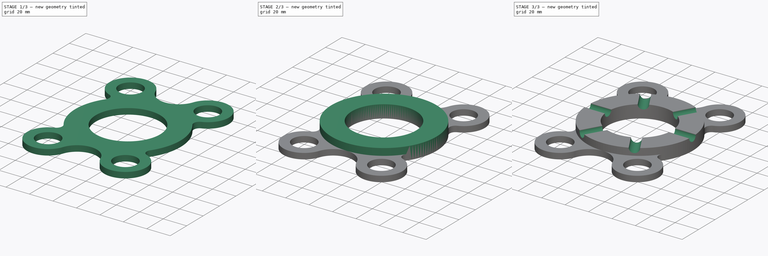
[diagram: build sequence overview — one tinted view per stage of 3, left to right]
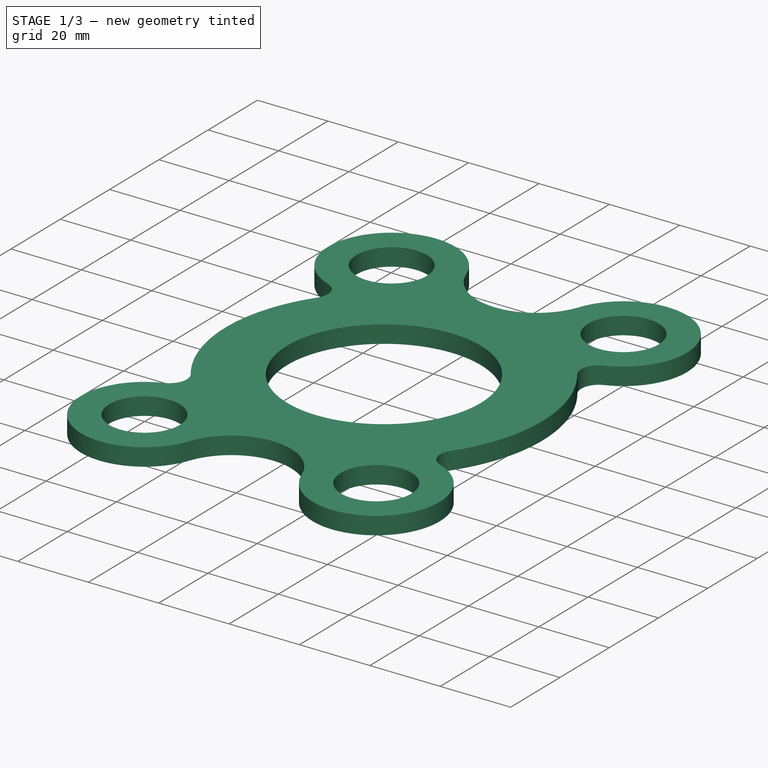
[diagram: stage 1 of 3 — iso view after this stage's code; geometry added in this stage tinted green]
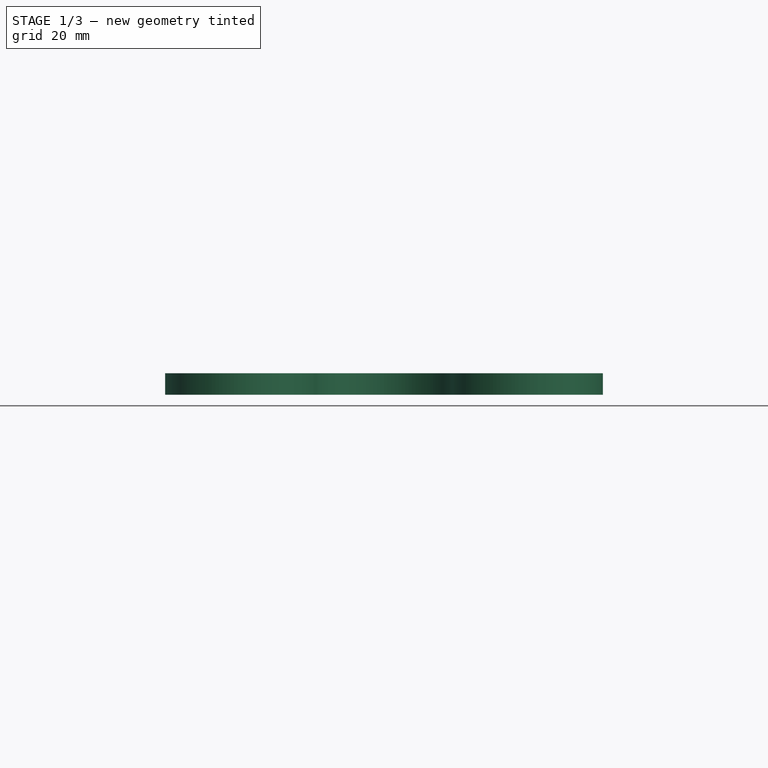
[diagram: stage 1 of 3 — front view after this stage's code; geometry added in this stage tinted green]
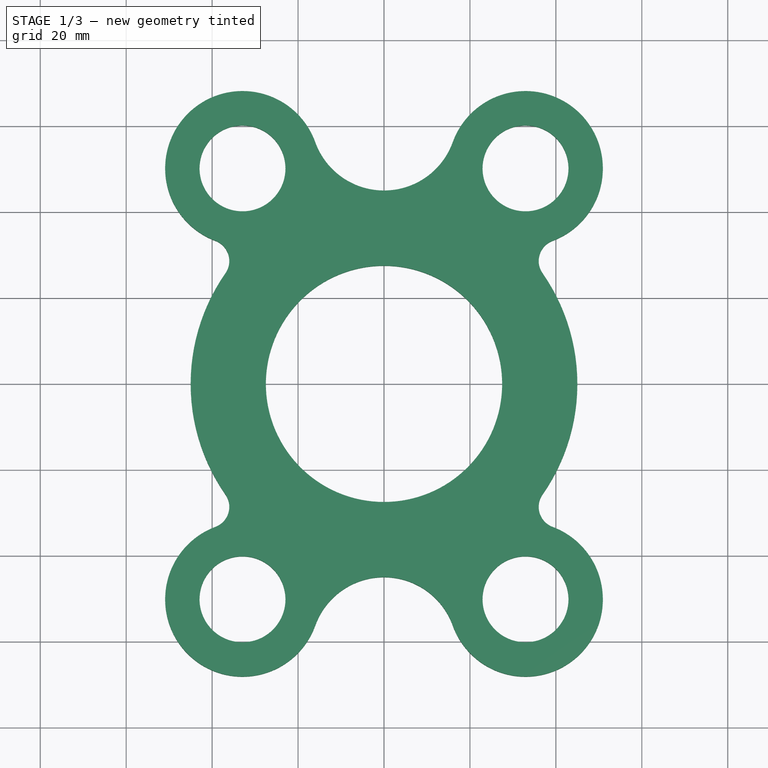
[diagram: stage 1 of 3 — top view after this stage's code; geometry added in this stage tinted green]
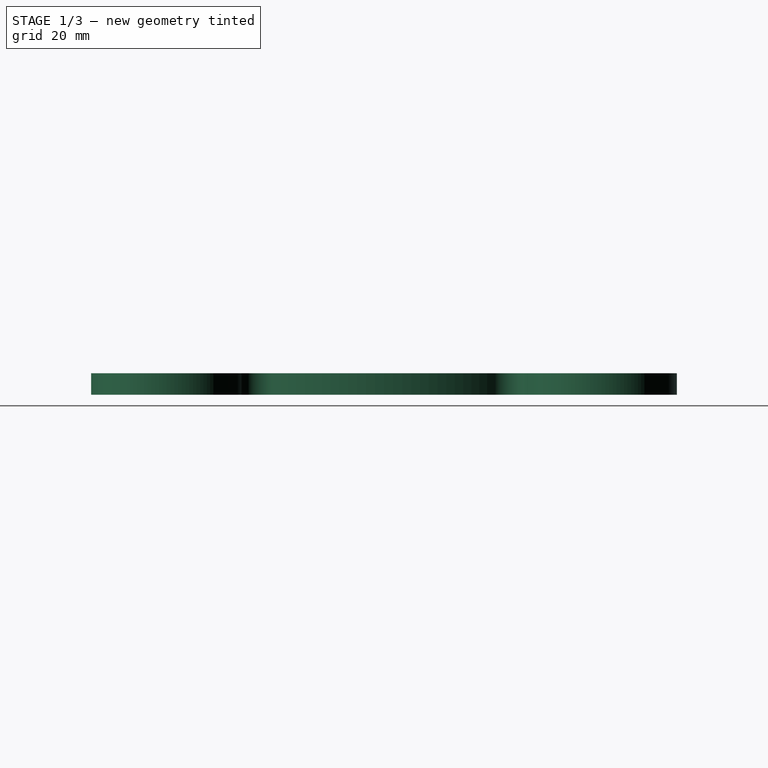
[diagram: stage 1 of 3 — right view after this stage's code; geometry added in this stage tinted green]
FCSTD DOCUMENT  (FreeCAD 0.18R14796 (Git))
Label: Page_09_Exercise 2D -01
License: All rights reserved
LicenseURL: http://en.wikipedia.org/wiki/All_rights_reserved
objects: Sketcher::SketchObject×2, PartDesign::Pad×2, PartDesign::Mirrored×2, PartDesign::MultiTransform×1, PartDesign::SubtractiveCylinder×1, PartDesign::PolarPattern×1, PartDesign::Body×1
note: 13 computed .brp shape members not serialized (recipe doc carries the construction recipe); baked Part::Feature solids carry a one-line shape summary decoded from their .brp

FEATURE [Sketcher::SketchObject] Sketch
  MapMode = 5
  Support = -> [XY_Plane]
  sketch-geometry (10):
    g0: ArcOfCircle CenterX=0 CenterY=62 CenterZ=0 NormalX=0 NormalY=0 NormalZ=1 AngleXU=0 Radius=17 StartAngle=3.48689 EndAngle=4.71239
    g1: ArcOfCircle CenterX=-32.9341 CenterY=50.1532 CenterZ=0 NormalX=0 NormalY=0 NormalZ=1 AngleXU=0 Radius=18 StartAngle=0.3453 EndAngle=4.35397
    g2: LineSegment StartX=0 StartY=45 StartZ=0 EndX=0 EndY=27.5 EndZ=0
    g3: ArcOfCircle CenterX=-41.0023 CenterY=28.6148 CenterZ=0 NormalX=0 NormalY=0 NormalZ=1 AngleXU=0 Radius=5 StartAngle=5.67388 EndAngle=7.49556
    g4: ArcOfCircle CenterX=0 CenterY=0 CenterZ=0 NormalX=0 NormalY=0 NormalZ=1 AngleXU=0 Radius=45 StartAngle=2.53229 EndAngle=3.14159
    g5: LineSegment StartX=-45 StartY=0 StartZ=0 EndX=-27.5 EndY=0 EndZ=0
    g6: ArcOfCircle CenterX=0 CenterY=0 CenterZ=0 NormalX=0 NormalY=0 NormalZ=1 AngleXU=0 Radius=27.5 StartAngle=1.5708 EndAngle=3.14159
    g7: ArcOfCircle [constr] CenterX=0 CenterY=0 CenterZ=0 NormalX=0 NormalY=0 NormalZ=1 AngleXU=0 Radius=45 StartAngle=1.5708 EndAngle=2.53229
    g8: LineSegment [constr] StartX=-32.9341 StartY=50.1532 StartZ=0 EndX=0 EndY=0 EndZ=0
    g9: Circle CenterX=-32.9341 CenterY=50.1532 CenterZ=0 NormalX=0 NormalY=0 NormalZ=1 AngleXU=0 Radius=10
  constraints (27):
    c: PointOnObject(g0,g-2)
    c: PointOnObject(g0,g-2)
    c: Radius(g0) = 17
    c: Vertical(g2)
    c: Tangent(g1,g0) = 1.5708
    c: Radius(g3) = 5
    c: Tangent(g3,g1) = 1.5708
    c: Radius(g1) = 18
    c: Radius(g4) = 45  'r_outer'
    c: Tangent(g4,g3) = 1.5708
    c: Coincident(g4,g-1)
    c: PointOnObject(g4,g-1)
    c: Coincident(g5,g4)
    c: Horizontal(g5)
    c: Coincident(g2,g0)
    c: Coincident(g6,g2)
    c: Radius(g6) = 27.5  'r_inner'
    c: Coincident(g6,g5)
    c: Coincident(g6,g4)
    c: Coincident(g7,g4)
    c: Coincident(g7,g0)
    c: Coincident(g7,g3)
    c: Coincident(g8,g1)
    c: Coincident(g8,g4)
    c: Distance(g8) = 60
    c: Coincident(g9,g1)
    c: Radius(g9) = 10
FEATURE [PartDesign::Pad] Pad
  Length = 5
  Length2 = 100
  Profile = -> Sketch
  Refine = true
  Type = 0
FEATURE [PartDesign::Mirrored] Mirrored
  MirrorPlane = -> Sketch [V_Axis]
  Refine = true
FEATURE [PartDesign::Mirrored] Mirrored001
  MirrorPlane = -> Sketch [H_Axis]
  Refine = true
FEATURE [PartDesign::MultiTransform] MultiTransform
  BaseFeature = -> Pad
  Originals = -> [Pad]
  Refine = true
  Transformations = -> [Mirrored,Mirrored001]
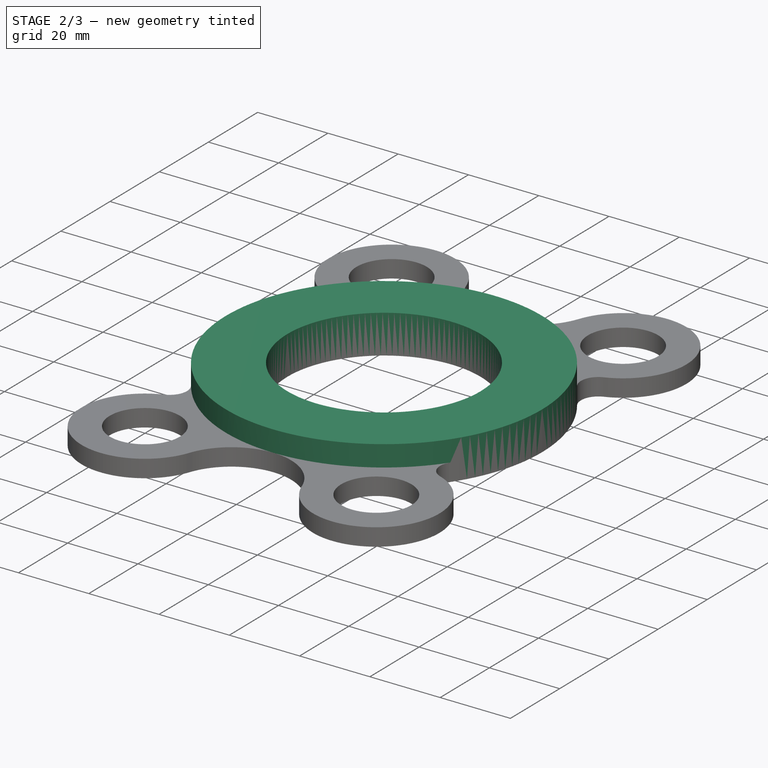
[diagram: stage 2 of 3 — iso view after this stage's code; geometry added in this stage tinted green]
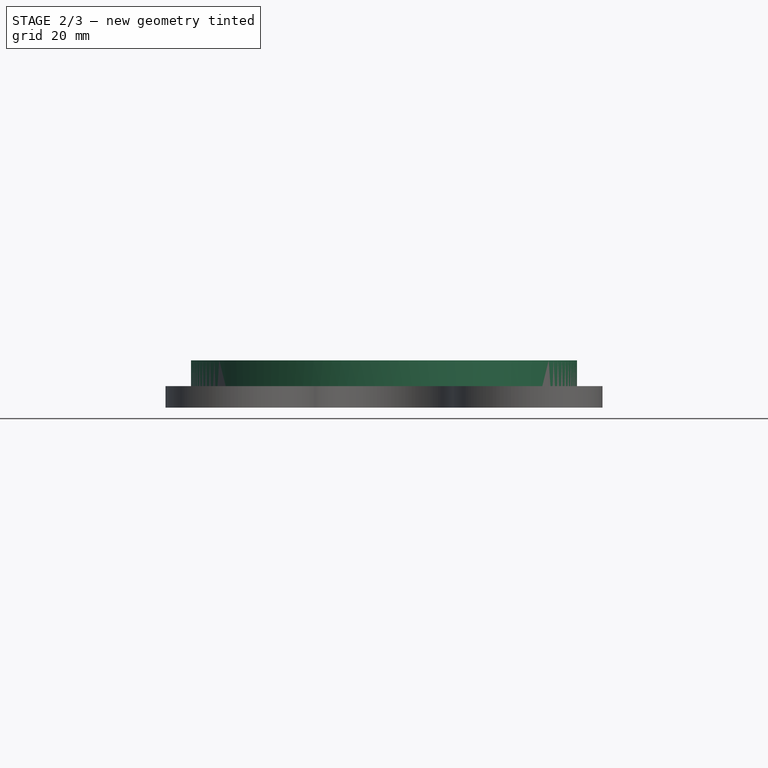
[diagram: stage 2 of 3 — front view after this stage's code; geometry added in this stage tinted green]
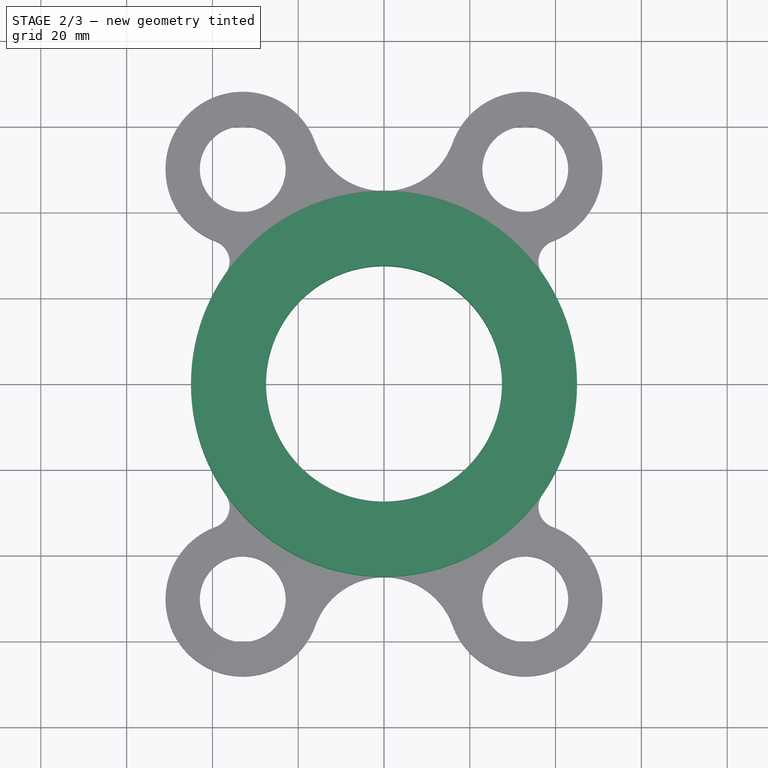
[diagram: stage 2 of 3 — top view after this stage's code; geometry added in this stage tinted green]
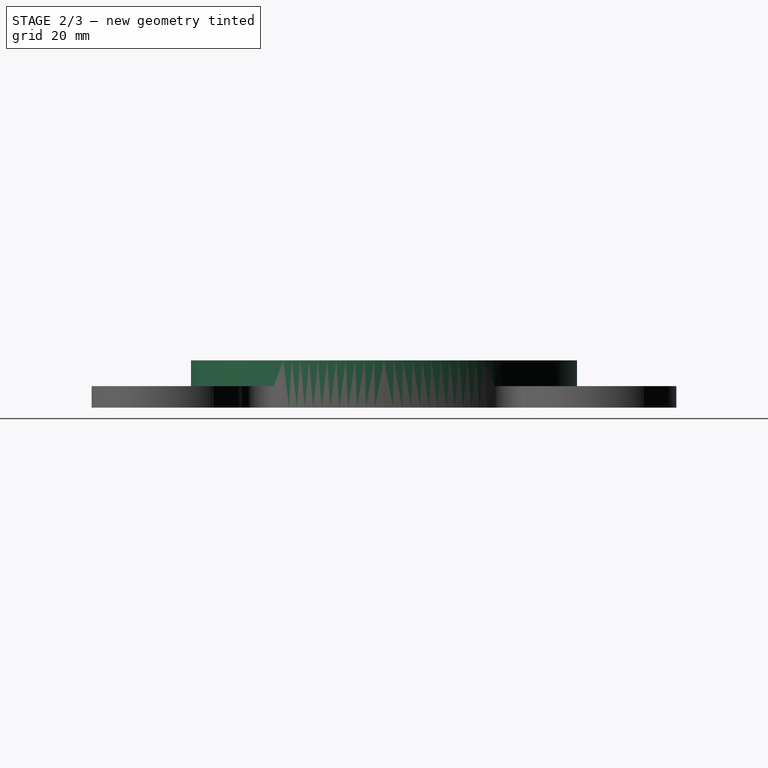
[diagram: stage 2 of 3 — right view after this stage's code; geometry added in this stage tinted green]
FEATURE [Sketcher::SketchObject] Sketch001
  AttachmentOffset = pos=(0,0,5) rot=(0,0,1;0rad)
  MapMode = 5
  Placement = pos=(0,0,5) rot=(0,0,1;0rad)
  Support = -> [XY_Plane]
  expr: AttachmentOffset.Base.z = Pad.Length
  expr: Constraints[3] = Sketch.Constraints.r_inner
  expr: Constraints[2] = Sketch.Constraints.r_outer
  sketch-geometry (2):
    g0: Circle CenterX=0 CenterY=0 CenterZ=0 NormalX=0 NormalY=0 NormalZ=1 AngleXU=0 Radius=27.5
    g1: Circle CenterX=0 CenterY=0 CenterZ=0 NormalX=0 NormalY=0 NormalZ=1 AngleXU=0 Radius=45
  constraints (4):
    c: Coincident(g0,g-1)
    c: Coincident(g1,g0)
    c: Radius(g1) = 45
    c: Radius(g0) = 27.5
FEATURE [PartDesign::Pad] Pad001
  BaseFeature = -> MultiTransform
  Length = 6
  Length2 = 100
  Profile = -> Sketch001
  Refine = true
  Type = 0
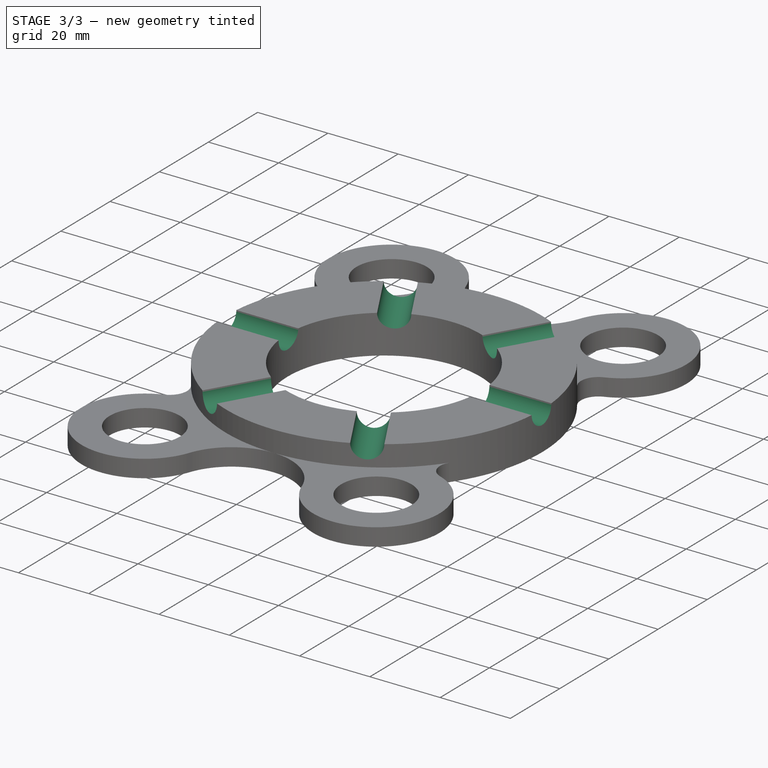
[diagram: stage 3 of 3 — iso view after this stage's code; geometry added in this stage tinted green]
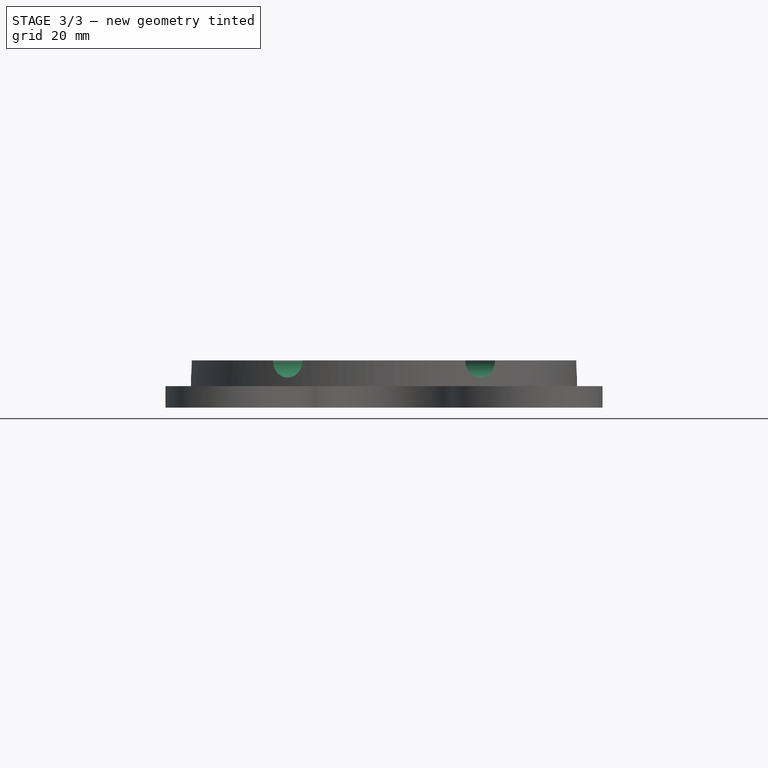
[diagram: stage 3 of 3 — front view after this stage's code; geometry added in this stage tinted green]
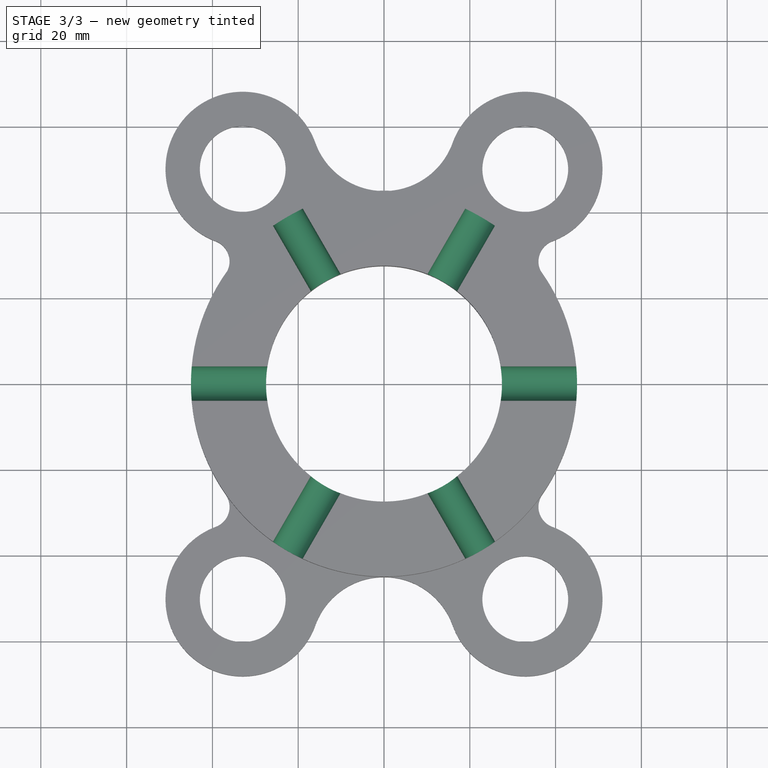
[diagram: stage 3 of 3 — top view after this stage's code; geometry added in this stage tinted green]
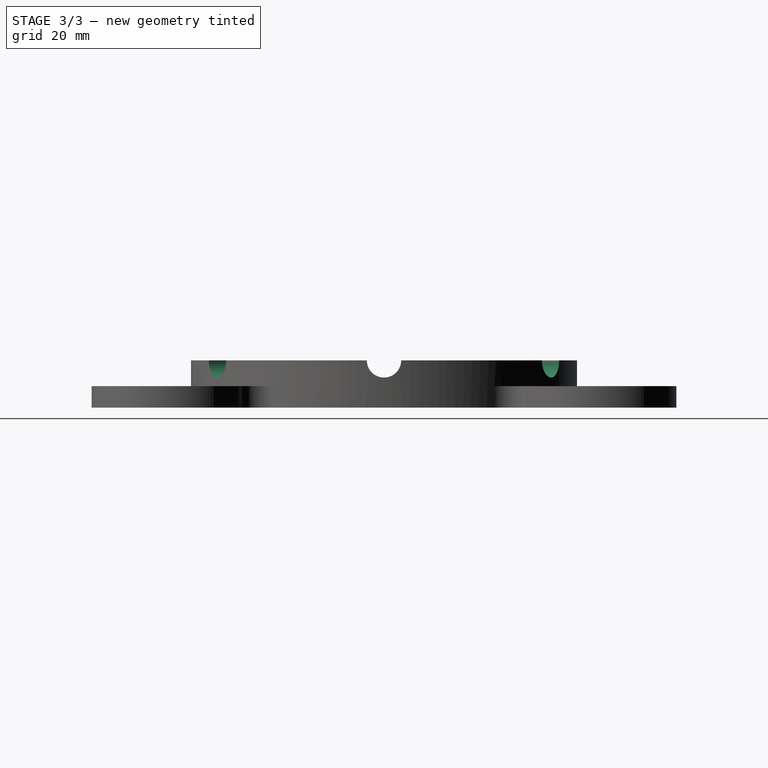
[diagram: stage 3 of 3 — right view after this stage's code; geometry added in this stage tinted green]
FEATURE [PartDesign::SubtractiveCylinder] Cylinder
  Angle = 360
  AttacherType = Attacher::AttachEngine3D
  AttachmentOffset = pos=(0,11,26.5) rot=(0,0,1;0rad)
  BaseFeature = -> Pad001
  Height = 19.5
  MapMode = 5
  Placement = pos=(26.5,-2e-12,11) rot=(0.57735,0.57735,0.57735;2.0944rad)
  Radius = 4
  Refine = true
  Support = -> [YZ_Plane]
  expr: Height = Sketch.Constraints.r_outer - Sketch.Constraints.r_inner + 2mm
  expr: AttachmentOffset.Base.y = Pad.Length + Pad001.Length
  expr: AttachmentOffset.Base.z = Sketch.Constraints.r_inner - 1mm
FEATURE [PartDesign::PolarPattern] PolarPattern
  Angle = 360
  Axis = -> Z_Axis
  BaseFeature = -> Cylinder
  Occurrences = 6
  Originals = -> [Cylinder]
  Placement = pos=(26.5,0,11) rot=(0.57735,0.57735,0.57735;2.0944rad)
  Refine = true
FEATURE [PartDesign::Body] Body
  Group = -> [Sketch,Pad,MultiTransform,Mirrored,Mirrored001,Sketch001,Pad001,Cylinder,PolarPattern]
  Origin = -> Origin
  Tip = -> PolarPattern
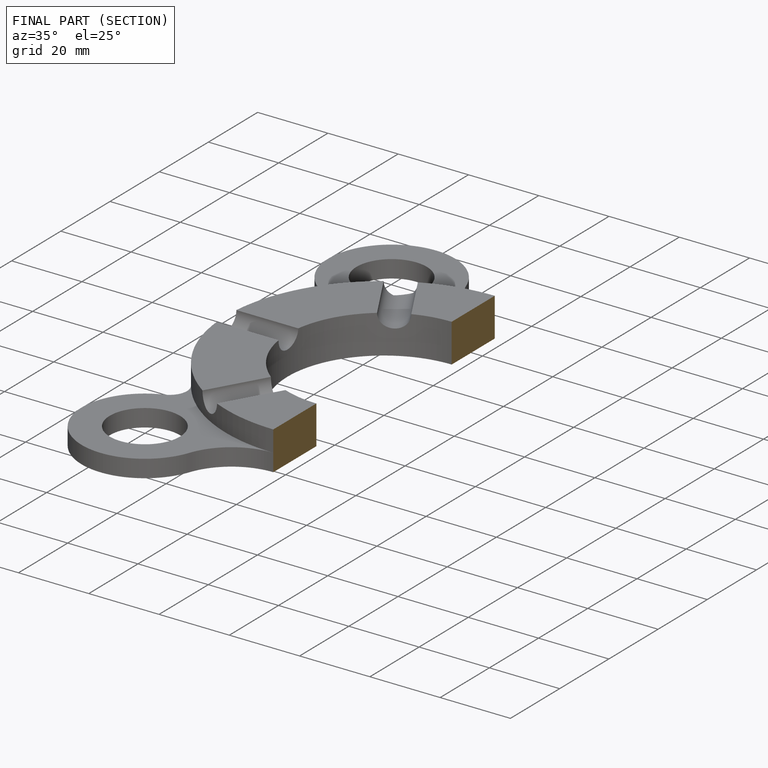
[diagram: finished part — half-section view (interior)]
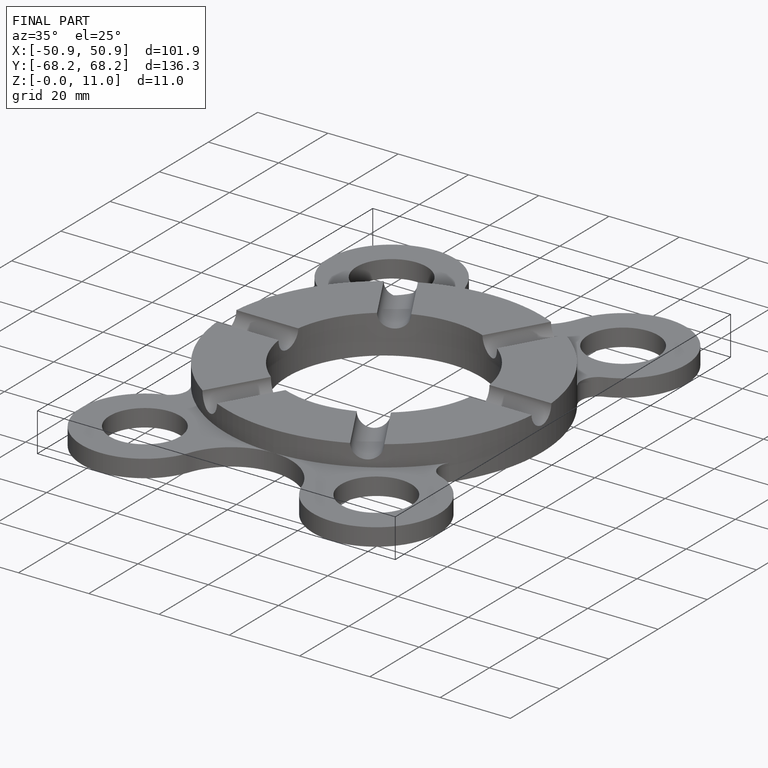
[diagram: finished part — iso view with bounding-box wireframe]
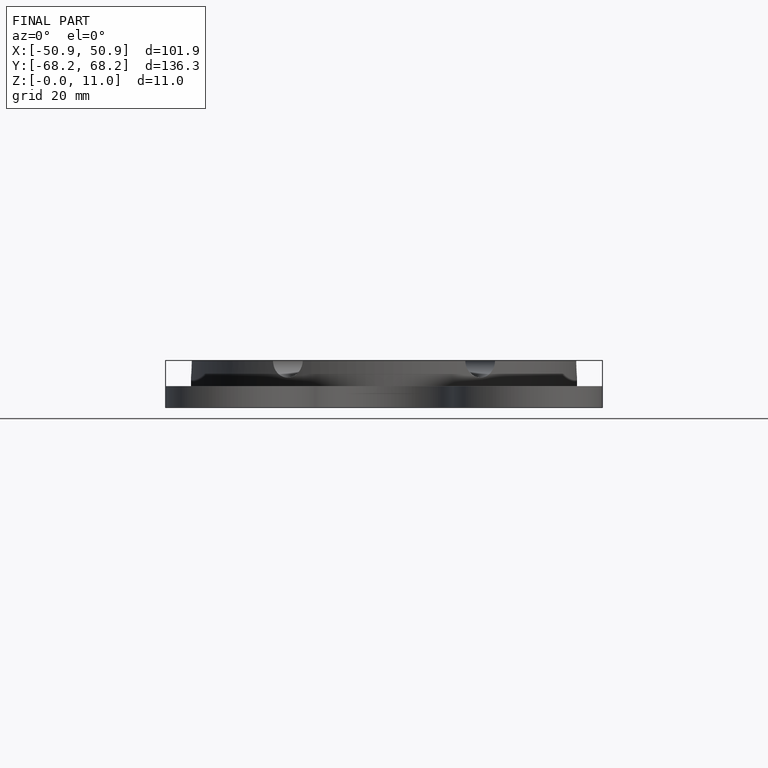
[diagram: finished part — front view with bounding-box wireframe]
